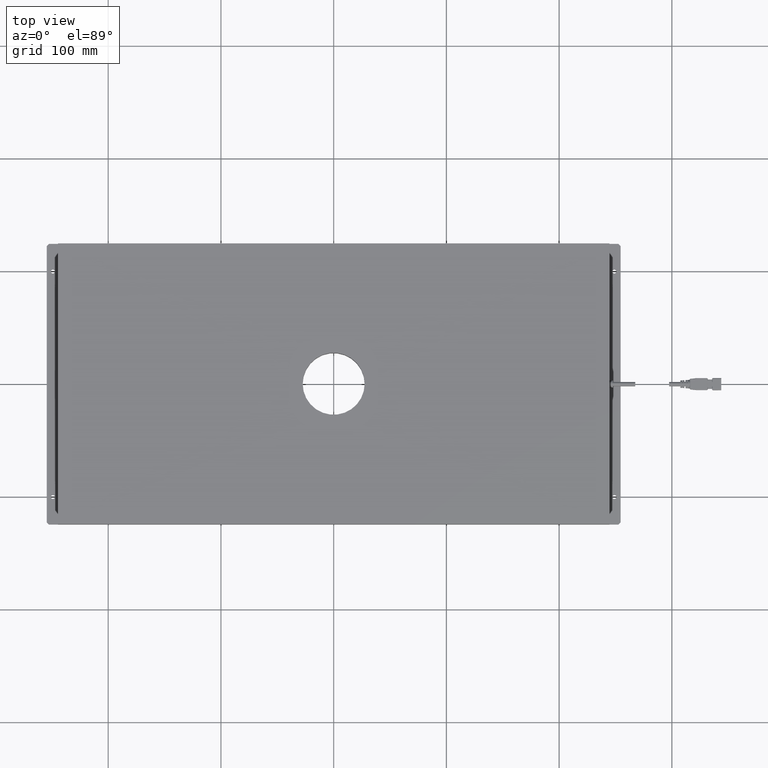
[diagram: clean part render]
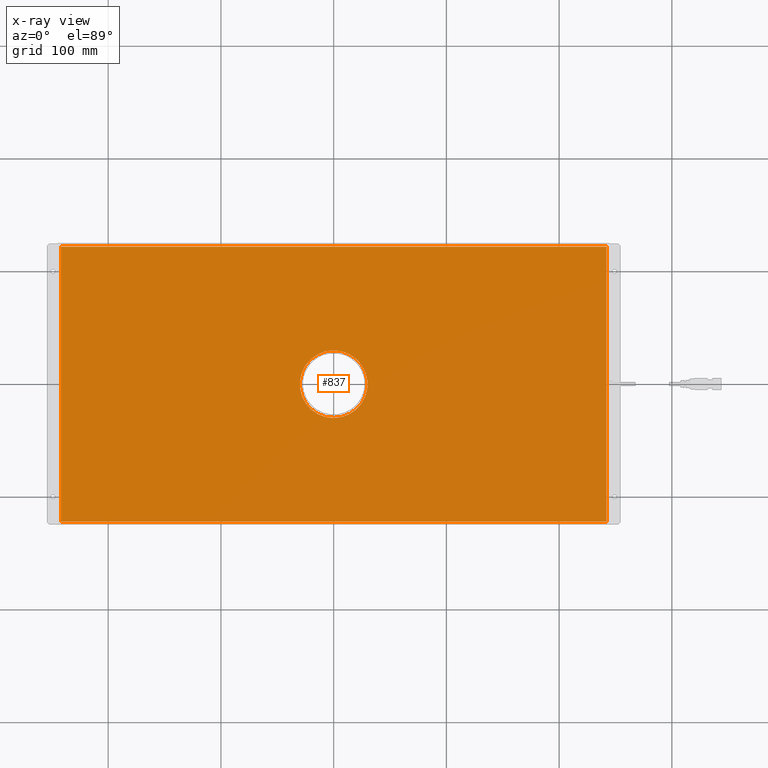
[diagram: x-ray — body ghosted, one internal face saturated and labeled with its STEP entity id]
A machine part, top view, then the same camera in x-ray: the body is ghosted and one INTERNAL B-rep face — a face not visible from any outside direction — is saturated and labeled: STEP entity #837.
In plain terms, the highlighted planar face has unit normal (0, -0, 1).
Its self-contained STEP definition (entity closure, byte-faithful):
#837=ADVANCED_FACE('0:283',(#2219,#2220),#2221,.T.);
#2219=FACE_BOUND('',#4006,.T.);
#2220=FACE_OUTER_BOUND('',#4007,.T.);
#2221=PLANE('',#4008);
#4006=EDGE_LOOP('',(#7337));
#4007=EDGE_LOOP('',(#7338,#7339,#7340,#7341));
#4008=AXIS2_PLACEMENT_3D('',#7342,#7343,#7344);
#7337=ORIENTED_EDGE('',*,*,#9545,.F.);
#7338=ORIENTED_EDGE('',*,*,#9546,.T.);
#7339=ORIENTED_EDGE('',*,*,#9523,.T.);
#7340=ORIENTED_EDGE('',*,*,#9543,.T.);
#7341=ORIENTED_EDGE('',*,*,#9547,.F.);
#7342=CARTESIAN_POINT('',(0.0,4.36435420138673E-17,0.0025));
#7343=DIRECTION('',(0.0,-3.49148336110938E-15,1.0));
#7344=DIRECTION('',(1.0,0.0,0.0));
#9523=EDGE_CURVE('0:940',#10036,#10040,#10042,.T.);
#9543=EDGE_CURVE('0:943',#10040,#10071,#10073,.T.);
#9545=EDGE_CURVE('1:132',#10075,#10075,#10076,.T.);
#9546=EDGE_CURVE('0:937',#10077,#10036,#10078,.T.);
#9547=EDGE_CURVE('0:961',#10077,#10071,#10079,.T.);
#10036=VERTEX_POINT('',#10707);
#10040=VERTEX_POINT('',#10713);
#10042=LINE('',#10716,#10717);
#10071=VERTEX_POINT('',#10758);
#10073=LINE('',#10761,#10762);
#10075=VERTEX_POINT('',#10764);
#10076=CIRCLE('',#10765,0.03);
#10077=VERTEX_POINT('',#10766);
#10078=LINE('',#10767,#10768);
#10079=LINE('',#10769,#10770);
#10707=CARTESIAN_POINT('',(-0.242,0.122,0.00250000000000043));
#10713=CARTESIAN_POINT('',(-0.242,-0.122,0.00249999999999957));
#10716=CARTESIAN_POINT('',(-0.242,-0.1245,0.00249999999999956));
#10717=VECTOR('',#11128,1.0);
#10758=CARTESIAN_POINT('',(0.242,-0.122,0.00249999999999957));
#10761=CARTESIAN_POINT('',(0.0,-0.122,0.00249999999999957));
#10762=VECTOR('',#11145,1.0);
#10764=CARTESIAN_POINT('',(0.0,-0.03,0.00249999999999989));
#10765=AXIS2_PLACEMENT_3D('',#11146,#11147,#11148);
#10766=CARTESIAN_POINT('',(0.242,0.122,0.00250000000000043));
#10767=CARTESIAN_POINT('',(0.0,0.122,0.00250000000000043));
#10768=VECTOR('',#11149,1.0);
#10769=CARTESIAN_POINT('',(0.242,-0.1245,0.00249999999999956));
#10770=VECTOR('',#11150,1.0);
#11128=DIRECTION('',(0.0,-1.0,-3.49148336110938E-15));
#11145=DIRECTION('',(1.0,0.0,0.0));
#11146=CARTESIAN_POINT('',(0.0,4.36435420138673E-17,0.0025));
#11147=DIRECTION('',(0.0,-3.49148336110938E-15,1.0));
#11148=DIRECTION('',(0.0,-1.0,-3.49148336110938E-15));
#11149=DIRECTION('',(-1.0,-0.0,0.0));
#11150=DIRECTION('',(0.0,-1.0,-3.49148336110938E-15));